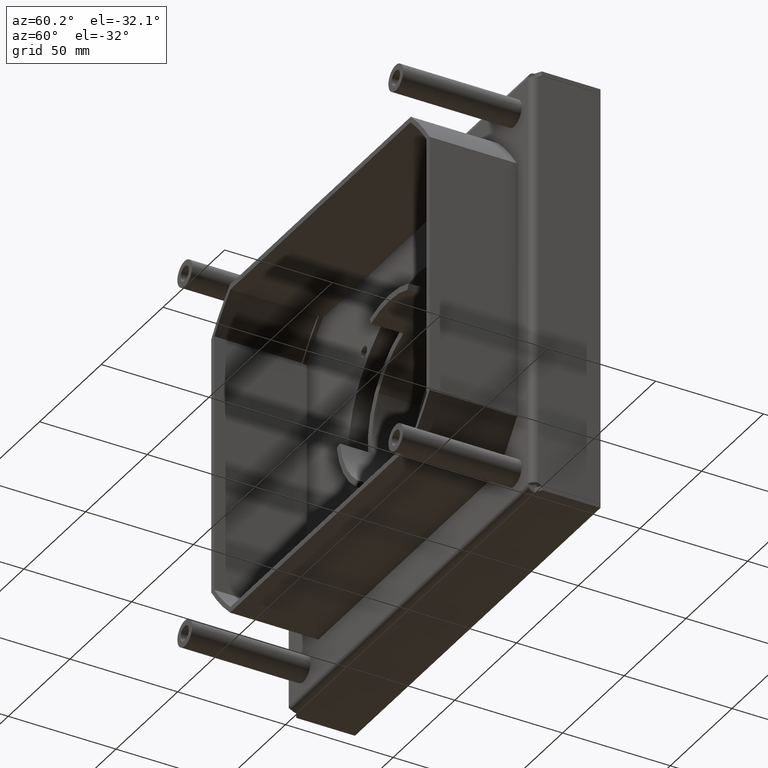
[diagram: clean part render]
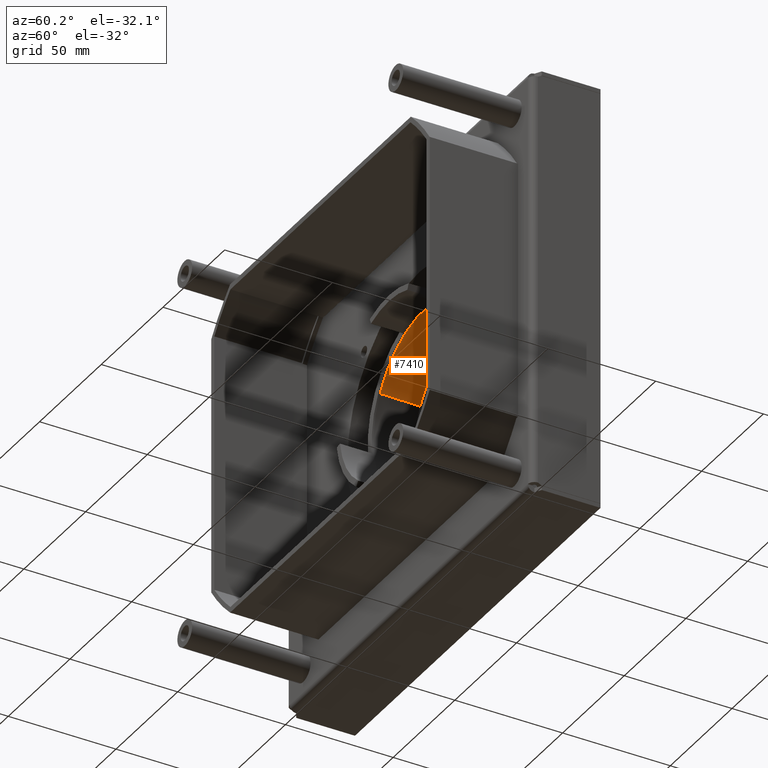
[diagram: same view with one face highlighted and labeled with its STEP entity id]
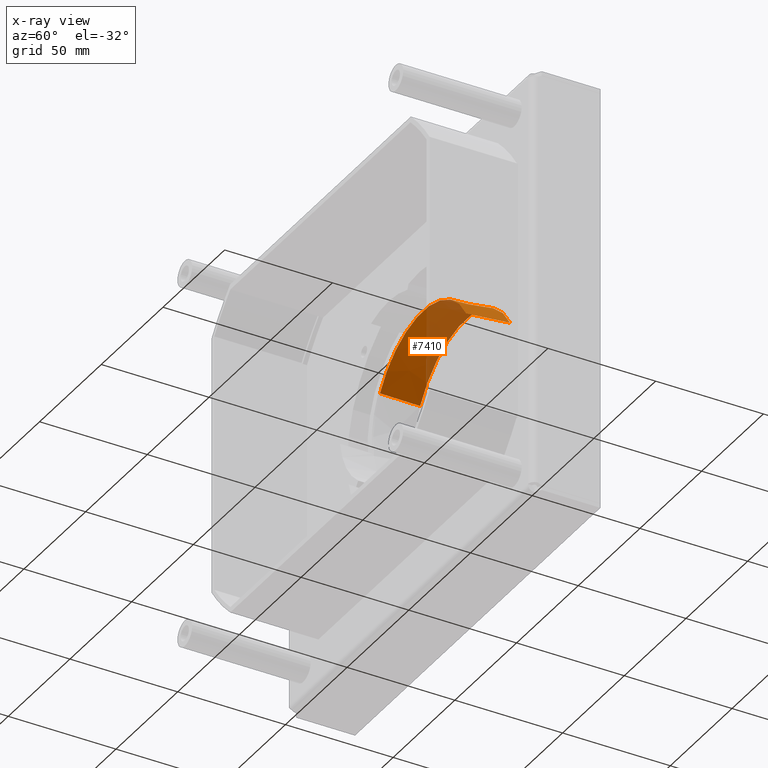
[diagram: x-ray of the same camera — body ghosted, the highlighted face saturated]
A machine part, auxiliary view. The second image highlights one B-rep face of the part: STEP entity #7410.
The next image is the same camera in x-ray: the body ghosted, the highlighted face saturated — about 45% of this face is hidden behind the body in this view.
In plain terms, the highlighted conical surface has half-angle 5 deg.
Its self-contained STEP definition (entity closure, byte-faithful):
#6853=CARTESIAN_POINT('',(0.E0,1.6E1,0.E0));
#6854=DIRECTION('',(0.E0,1.E0,0.E0));
#6855=DIRECTION('',(-5.E-1,0.E0,-8.660254037844E-1));
#6856=AXIS2_PLACEMENT_3D('',#6853,#6854,#6855);
#6861=CARTESIAN_POINT('',(1.026136878795E-14,-3.5E0,0.E0));
#6862=DIRECTION('',(0.E0,1.E0,0.E0));
#6863=DIRECTION('',(-5.E-1,0.E0,-8.660254037844E-1));
#6864=AXIS2_PLACEMENT_3D('',#6861,#6862,#6863);
#6869=DIRECTION('',(-4.357787137383E-2,-9.961946980917E-1,-7.547908730517E-2));
#6870=VECTOR('',#6869,1.957448683210E1);
#6871=CARTESIAN_POINT('',(-2.014698553062E1,1.6E1,-3.489560255839E1));
#6872=LINE('',#6871,#6870);
#6884=DIRECTION('',(-4.357787137383E-2,-9.961946980917E-1,7.547908730517E-2));
#6885=VECTOR('',#6884,1.957448683210E1);
#6886=CARTESIAN_POINT('',(-2.014698553062E1,1.6E1,3.489560255839E1));
#6887=LINE('',#6886,#6885);
#7071=CARTESIAN_POINT('',(-2.014698553062E1,1.6E1,-3.489560255839E1));
#7073=VERTEX_POINT('',#7071);
#7086=CARTESIAN_POINT('',(-2.014698553062E1,1.6E1,3.489560255839E1));
#7088=VERTEX_POINT('',#7086);
#7151=CARTESIAN_POINT('',(-2.1E1,-3.5E0,-3.637306695895E1));
#7152=VERTEX_POINT('',#7151);
#7153=CARTESIAN_POINT('',(-2.1E1,-3.5E0,3.637306695895E1));
#7154=VERTEX_POINT('',#7153);
#7396=CARTESIAN_POINT('',(0.E0,6.25E0,0.E0));
#7397=DIRECTION('',(0.E0,-1.E0,0.E0));
#7398=DIRECTION('',(-5.E-1,0.E0,-8.660254037844E-1));
#7399=AXIS2_PLACEMENT_3D('',#7396,#7397,#7398);
#7400=CONICAL_SURFACE('',#7399,4.114698553062E1,5.E0);
#7402=ORIENTED_EDGE('',*,*,#7401,.T.);
#7404=ORIENTED_EDGE('',*,*,#7403,.T.);
#7406=ORIENTED_EDGE('',*,*,#7405,.F.);
#7407=ORIENTED_EDGE('',*,*,#7382,.F.);
#7408=EDGE_LOOP('',(#7402,#7404,#7406,#7407));
#7409=FACE_OUTER_BOUND('',#7408,.F.);
#6857=CIRCLE('',#6856,4.029397106124E1);
#6865=CIRCLE('',#6864,4.2E1);
#7382=EDGE_CURVE('',#7073,#7088,#6857,.T.);
#7401=EDGE_CURVE('',#7073,#7152,#6872,.T.);
#7403=EDGE_CURVE('',#7152,#7154,#6865,.T.);
#7405=EDGE_CURVE('',#7088,#7154,#6887,.T.);
#7410=ADVANCED_FACE('',(#7409),#7400,.F.);